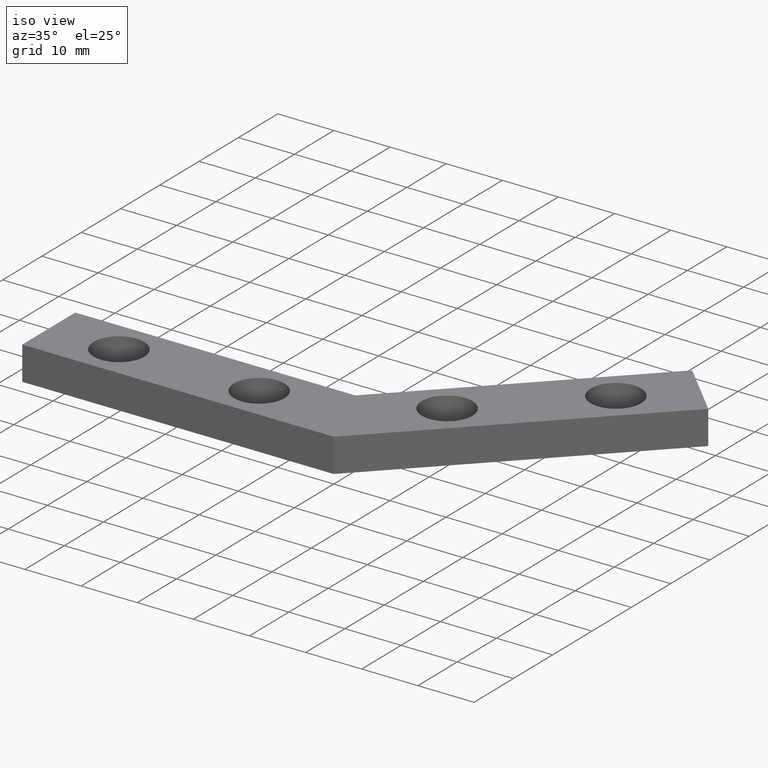
[diagram: clean part render]
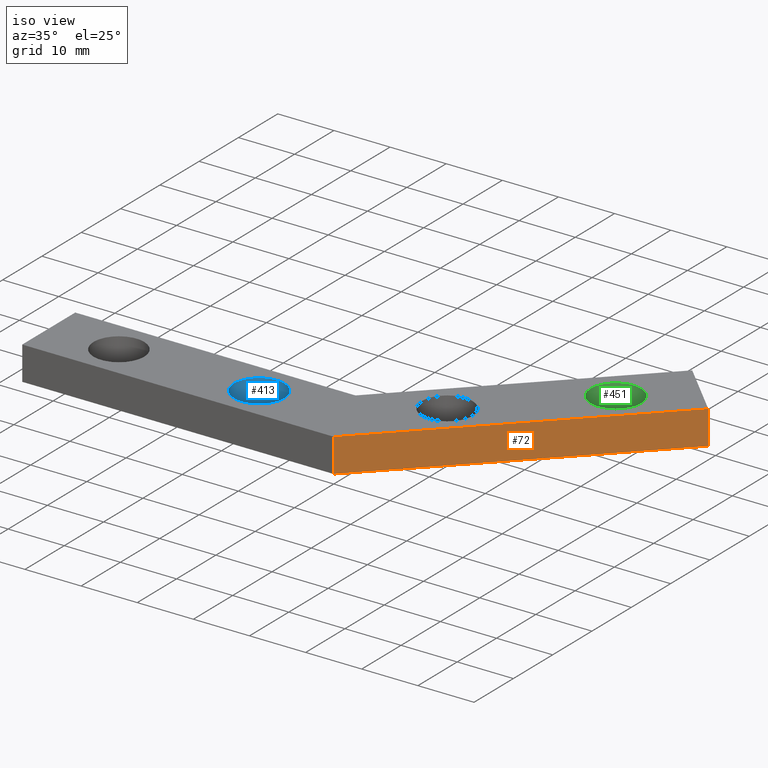
[diagram: same view with three faces highlighted in distinct colors, each labeled with its STEP entity id]
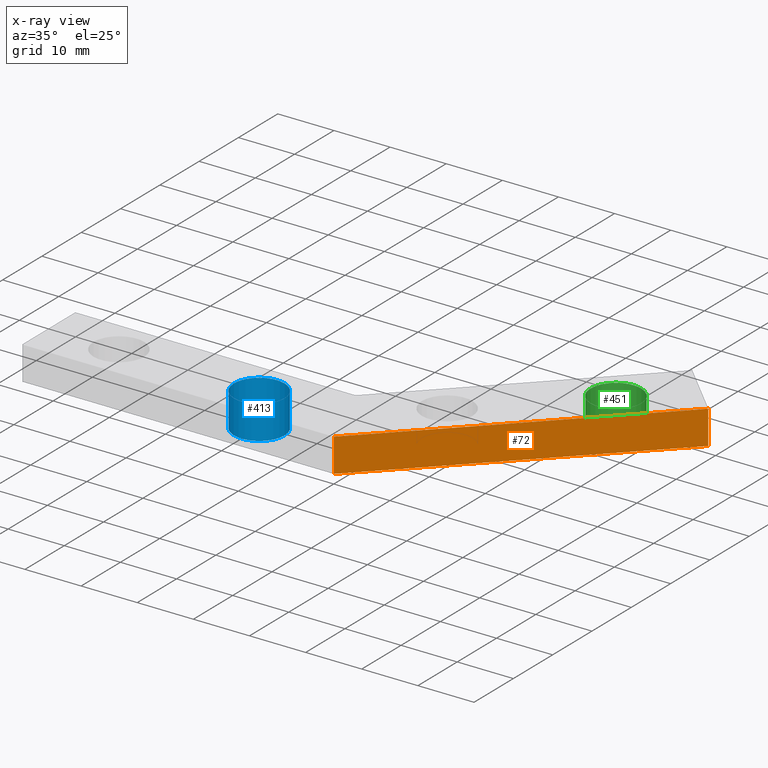
[diagram: x-ray of the same camera — body ghosted, the three highlighted faces saturated]
A machine part, iso view with three faces highlighted in distinct colors.
The next image is the same camera in x-ray (body ghosted, the three faces saturated) — at least one of them is partly hidden behind the body in this view.
Their STEP definitions:

[orange] entity #72 — the highlighted planar face has unit normal (-0.7071, 0.7071, 0).
#17=CARTESIAN_POINT('',(0.0,0.0,0.0));
#18=VERTEX_POINT('',#17);
#25=CARTESIAN_POINT('',(0.0,0.0,6.0));
#26=VERTEX_POINT('',#25);
#27=CARTESIAN_POINT('',(0.0,0.0,6.0));
#28=DIRECTION('',(0.0,0.0,-1.0));
#29=VECTOR('',#28,6.0);
#30=LINE('',#27,#29);
#31=EDGE_CURVE('',#26,#18,#30,.T.);
#42=CARTESIAN_POINT('',(0.0,0.0,6.0));
#43=DIRECTION('',(-0.707106781186548,0.707106781186548,0.0));
#44=DIRECTION('',(0.707106781186548,0.707106781186548,0.0));
#45=AXIS2_PLACEMENT_3D('',#42,#43,#44);
#46=PLANE('',#45);
#47=ORIENTED_EDGE('',*,*,#31,.T.);
#48=CARTESIAN_POINT('',(39.244425999842861,39.244425999842861,0.0));
#49=VERTEX_POINT('',#48);
#50=CARTESIAN_POINT('',(0.0,0.0,0.0));
#51=DIRECTION('',(0.707106781186548,0.707106781186548,0.0));
#52=VECTOR('',#51,55.499999496525085);
#53=LINE('',#50,#52);
#54=EDGE_CURVE('',#18,#49,#53,.T.);
#55=ORIENTED_EDGE('',*,*,#54,.T.);
#56=CARTESIAN_POINT('',(39.244425999842861,39.244425999842861,6.0));
#57=VERTEX_POINT('',#56);
#58=CARTESIAN_POINT('',(39.244425999842861,39.244425999842861,6.0));
#59=DIRECTION('',(0.0,0.0,-1.0));
#60=VECTOR('',#59,6.0);
#61=LINE('',#58,#60);
#62=EDGE_CURVE('',#57,#49,#61,.T.);
#63=ORIENTED_EDGE('',*,*,#62,.F.);
#64=CARTESIAN_POINT('',(0.0,0.0,6.0));
#65=DIRECTION('',(0.707106781186548,0.707106781186548,0.0));
#66=VECTOR('',#65,55.499999496525085);
#67=LINE('',#64,#66);
#68=EDGE_CURVE('',#26,#57,#67,.T.);
#69=ORIENTED_EDGE('',*,*,#68,.F.);
#70=EDGE_LOOP('',(#47,#55,#63,#69));
#71=FACE_OUTER_BOUND('',#70,.T.);
#72=ADVANCED_FACE('',(#71),#46,.F.);

[blue] entity #413 — the highlighted cylindrical surface (bore or boss wall) has radius 4.5 mm, axis along (0, 0, 1).
#221=CARTESIAN_POINT('',(-22.500028999928418,6.749999999973170,6.0));
#222=VERTEX_POINT('',#221);
#223=CARTESIAN_POINT('',(-13.500028999928418,6.749999999973170,6.0));
#224=VERTEX_POINT('',#223);
#225=CARTESIAN_POINT('',(-18.000028999928418,6.749999999973170,6.0));
#226=DIRECTION('',(0.0,0.0,1.0));
#227=DIRECTION('',(1.0,0.0,0.0));
#228=AXIS2_PLACEMENT_3D('',#225,#226,#227);
#229=CIRCLE('',#228,4.500000000000000);
#230=EDGE_CURVE('',#222,#224,#229,.T.);
#232=CARTESIAN_POINT('',(-18.000028999928418,6.749999999973170,6.0));
#233=DIRECTION('',(0.0,0.0,1.0));
#234=DIRECTION('',(1.0,0.0,0.0));
#235=AXIS2_PLACEMENT_3D('',#232,#233,#234);
#236=CIRCLE('',#235,4.500000000000000);
#237=EDGE_CURVE('',#224,#222,#236,.T.);
#315=CARTESIAN_POINT('',(-22.500028999928418,6.749999999973170,0.0));
#316=VERTEX_POINT('',#315);
#317=CARTESIAN_POINT('',(-13.500028999928418,6.749999999973170,0.0));
#318=VERTEX_POINT('',#317);
#319=CARTESIAN_POINT('',(-18.000028999928418,6.749999999973170,0.0));
#320=DIRECTION('',(0.0,0.0,-1.0));
#321=DIRECTION('',(1.0,0.0,0.0));
#322=AXIS2_PLACEMENT_3D('',#319,#320,#321);
#323=CIRCLE('',#322,4.500000000000000);
#324=EDGE_CURVE('',#316,#318,#323,.T.);
#326=CARTESIAN_POINT('',(-18.000028999928418,6.749999999973170,0.0));
#327=DIRECTION('',(0.0,0.0,-1.0));
#328=DIRECTION('',(1.0,0.0,0.0));
#329=AXIS2_PLACEMENT_3D('',#326,#327,#328);
#330=CIRCLE('',#329,4.500000000000000);
#331=EDGE_CURVE('',#318,#316,#330,.T.);
#395=CARTESIAN_POINT('',(-18.000028999928418,6.749999999973170,6.0));
#396=DIRECTION('',(0.0,0.0,1.0));
#397=DIRECTION('',(1.0,0.0,0.0));
#398=AXIS2_PLACEMENT_3D('',#395,#396,#397);
#399=CYLINDRICAL_SURFACE('',#398,4.500000000000000);
#400=CARTESIAN_POINT('',(-13.500028999928418,6.749999999973170,6.0));
#401=DIRECTION('',(0.0,0.0,-1.0));
#402=VECTOR('',#401,6.0);
#403=LINE('',#400,#402);
#404=EDGE_CURVE('',#224,#318,#403,.T.);
#405=ORIENTED_EDGE('',*,*,#404,.T.);
#406=ORIENTED_EDGE('',*,*,#331,.T.);
#407=ORIENTED_EDGE('',*,*,#324,.T.);
#408=ORIENTED_EDGE('',*,*,#404,.F.);
#409=ORIENTED_EDGE('',*,*,#237,.T.);
#410=ORIENTED_EDGE('',*,*,#230,.T.);
#411=EDGE_LOOP('',(#405,#406,#407,#408,#409,#410));
#412=FACE_OUTER_BOUND('',#411,.T.);
#413=ADVANCED_FACE('',(#412),#399,.F.);

[green] entity #451 — the highlighted cylindrical surface (bore or boss wall) has radius 4.5 mm, axis along (0, 0, 1).
#261=CARTESIAN_POINT('',(21.132620999897426,35.178561999859085,6.0));
#262=VERTEX_POINT('',#261);
#263=CARTESIAN_POINT('',(30.132620999897426,35.178561999859085,6.0));
#264=VERTEX_POINT('',#263);
#265=CARTESIAN_POINT('',(25.632620999897426,35.178561999859085,6.0));
#266=DIRECTION('',(0.0,0.0,1.0));
#267=DIRECTION('',(1.0,0.0,0.0));
#268=AXIS2_PLACEMENT_3D('',#265,#266,#267);
#269=CIRCLE('',#268,4.500000000000000);
#270=EDGE_CURVE('',#262,#264,#269,.T.);
#272=CARTESIAN_POINT('',(25.632620999897426,35.178561999859085,6.0));
#273=DIRECTION('',(0.0,0.0,1.0));
#274=DIRECTION('',(1.0,0.0,0.0));
#275=AXIS2_PLACEMENT_3D('',#272,#273,#274);
#276=CIRCLE('',#275,4.500000000000000);
#277=EDGE_CURVE('',#264,#262,#276,.T.);
#355=CARTESIAN_POINT('',(21.132620999897426,35.178561999859085,0.0));
#356=VERTEX_POINT('',#355);
#357=CARTESIAN_POINT('',(30.132620999897426,35.178561999859085,0.0));
#358=VERTEX_POINT('',#357);
#359=CARTESIAN_POINT('',(25.632620999897426,35.178561999859085,0.0));
#360=DIRECTION('',(0.0,0.0,-1.0));
#361=DIRECTION('',(1.0,0.0,0.0));
#362=AXIS2_PLACEMENT_3D('',#359,#360,#361);
#363=CIRCLE('',#362,4.500000000000000);
#364=EDGE_CURVE('',#356,#358,#363,.T.);
#366=CARTESIAN_POINT('',(25.632620999897426,35.178561999859085,0.0));
#367=DIRECTION('',(0.0,0.0,-1.0));
#368=DIRECTION('',(1.0,0.0,0.0));
#369=AXIS2_PLACEMENT_3D('',#366,#367,#368);
#370=CIRCLE('',#369,4.500000000000000);
#371=EDGE_CURVE('',#358,#356,#370,.T.);
#433=CARTESIAN_POINT('',(25.632620999897426,35.178561999859085,6.0));
#434=DIRECTION('',(0.0,0.0,1.0));
#435=DIRECTION('',(1.0,0.0,0.0));
#436=AXIS2_PLACEMENT_3D('',#433,#434,#435);
#437=CYLINDRICAL_SURFACE('',#436,4.500000000000000);
#438=CARTESIAN_POINT('',(30.132620999897426,35.178561999859085,6.0));
#439=DIRECTION('',(0.0,0.0,-1.0));
#440=VECTOR('',#439,6.0);
#441=LINE('',#438,#440);
#442=EDGE_CURVE('',#264,#358,#441,.T.);
#443=ORIENTED_EDGE('',*,*,#442,.T.);
#444=ORIENTED_EDGE('',*,*,#371,.T.);
#445=ORIENTED_EDGE('',*,*,#364,.T.);
#446=ORIENTED_EDGE('',*,*,#442,.F.);
#447=ORIENTED_EDGE('',*,*,#277,.T.);
#448=ORIENTED_EDGE('',*,*,#270,.T.);
#449=EDGE_LOOP('',(#443,#444,#445,#446,#447,#448));
#450=FACE_OUTER_BOUND('',#449,.T.);
#451=ADVANCED_FACE('',(#450),#437,.F.);